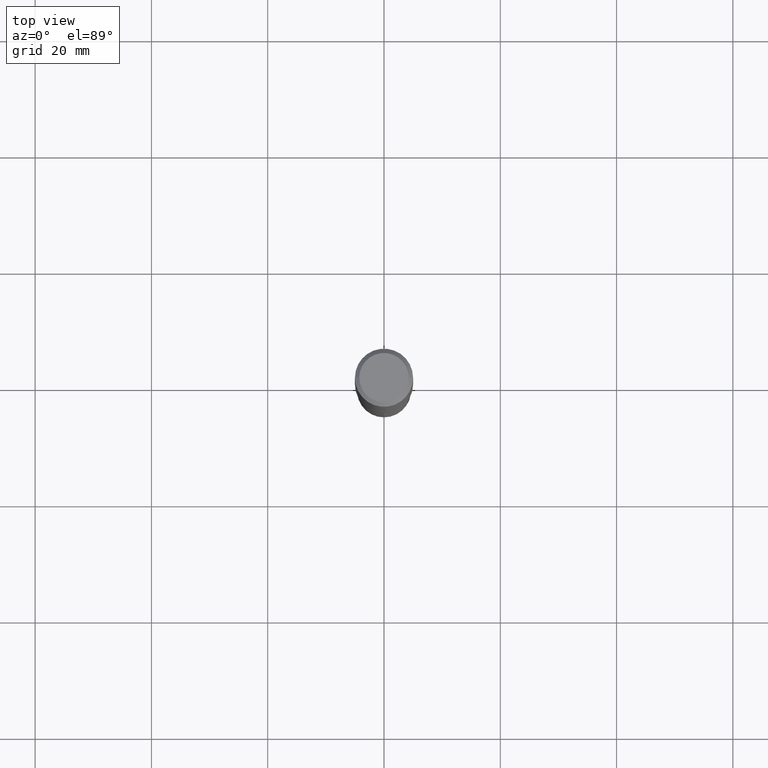
[diagram: clean part render]
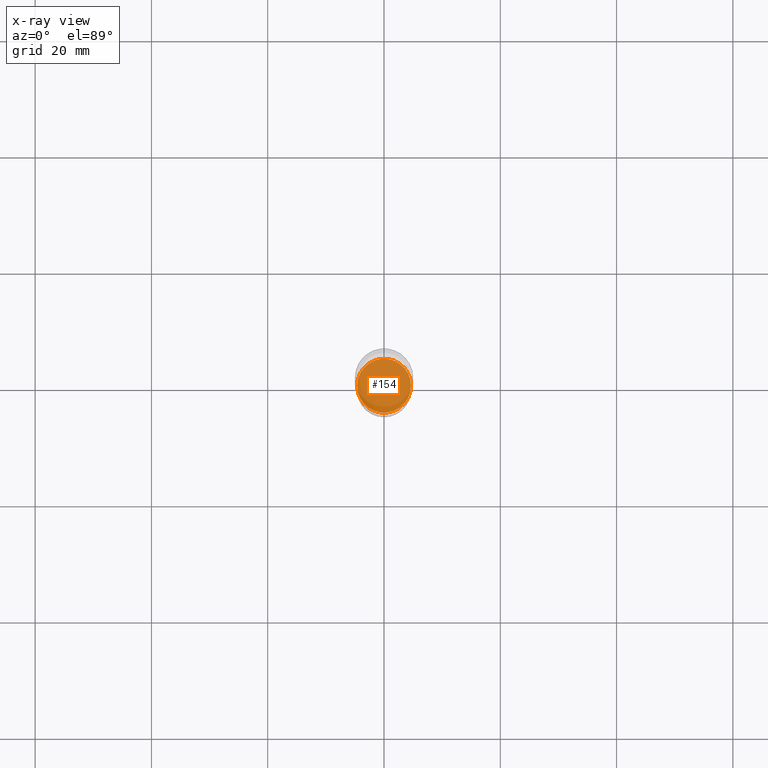
[diagram: x-ray — body ghosted, one internal face saturated and labeled with its STEP entity id]
A machine part, top view, then the same camera in x-ray: the body is ghosted and one INTERNAL B-rep face — a face not visible from any outside direction — is saturated and labeled: STEP entity #154.
In plain terms, the highlighted planar face has unit normal (-0, 0, 1).
Its self-contained STEP definition (entity closure, byte-faithful):
#33 = DIRECTION ( 'NONE',  ( -2.445468806185136597E-29, 3.491481338843145583E-15, 1.000000000000000000 ) ) ;
#34 = CARTESIAN_POINT ( 'NONE',  ( 0.1825499999999999623, -1.227046201723034707E-14, -3.149300000000000210 ) ) ;
#39 = FACE_OUTER_BOUND ( 'NONE', #326, .T. ) ;
#75 = ORIENTED_EDGE ( 'NONE', *, *, #383, .F. ) ;
#89 = DIRECTION ( 'NONE',  ( 1.000000000000000000, -6.982962677686264344E-15, 0.000000000000000000 ) ) ;
#106 = PLANE ( 'NONE',  #262 ) ;
#114 = CARTESIAN_POINT ( 'NONE',  ( 7.701514911318851479E-29, -1.099572218041872020E-14, -3.149300000000000210 ) ) ;
#123 = CARTESIAN_POINT ( 'NONE',  ( 7.701514911318851479E-29, -1.099572218041872020E-14, -3.149300000000000210 ) ) ;
#153 = DIRECTION ( 'NONE',  ( 1.000000000000000000, -6.982962677686264344E-15, 0.000000000000000000 ) ) ;
#154 = ADVANCED_FACE ( 'NONE', ( #39 ), #106, .F. ) ;
#162 = EDGE_CURVE ( 'NONE', #325, #246, #236, .T. ) ;
#181 = AXIS2_PLACEMENT_3D ( 'NONE', #114, #193, #153 ) ;
#192 = DIRECTION ( 'NONE',  ( -2.438088387897960049E-29, 3.491481338843145188E-15, 1.000000000000000000 ) ) ;
#193 = DIRECTION ( 'NONE',  ( -2.445468806185136597E-29, 3.491481338843145583E-15, 1.000000000000000000 ) ) ;
#236 = CIRCLE ( 'NONE', #181, 0.1825499999999999623 ) ;
#246 = VERTEX_POINT ( 'NONE', #34 ) ;
#262 = AXIS2_PLACEMENT_3D ( 'NONE', #407, #192, #450 ) ;
#322 = CARTESIAN_POINT ( 'NONE',  ( -0.1825499999999999623, -9.695977189114545388E-15, -3.149300000000000210 ) ) ;
#325 = VERTEX_POINT ( 'NONE', #322 ) ;
#326 = EDGE_LOOP ( 'NONE', ( #75, #328 ) ) ;
#328 = ORIENTED_EDGE ( 'NONE', *, *, #162, .F. ) ;
#380 = CIRCLE ( 'NONE', #460, 0.1825499999999999623 ) ;
#383 = EDGE_CURVE ( 'NONE', #246, #325, #380, .T. ) ;
#407 = CARTESIAN_POINT ( 'NONE',  ( 1.119506348740619180E-29, -2.042153306669301599E-14, -3.149300000000000210 ) ) ;
#450 = DIRECTION ( 'NONE',  ( 1.000000000000000000, -6.982962677686265922E-15, 4.876176775795935793E-29 ) ) ;
#460 = AXIS2_PLACEMENT_3D ( 'NONE', #123, #33, #89 ) ;